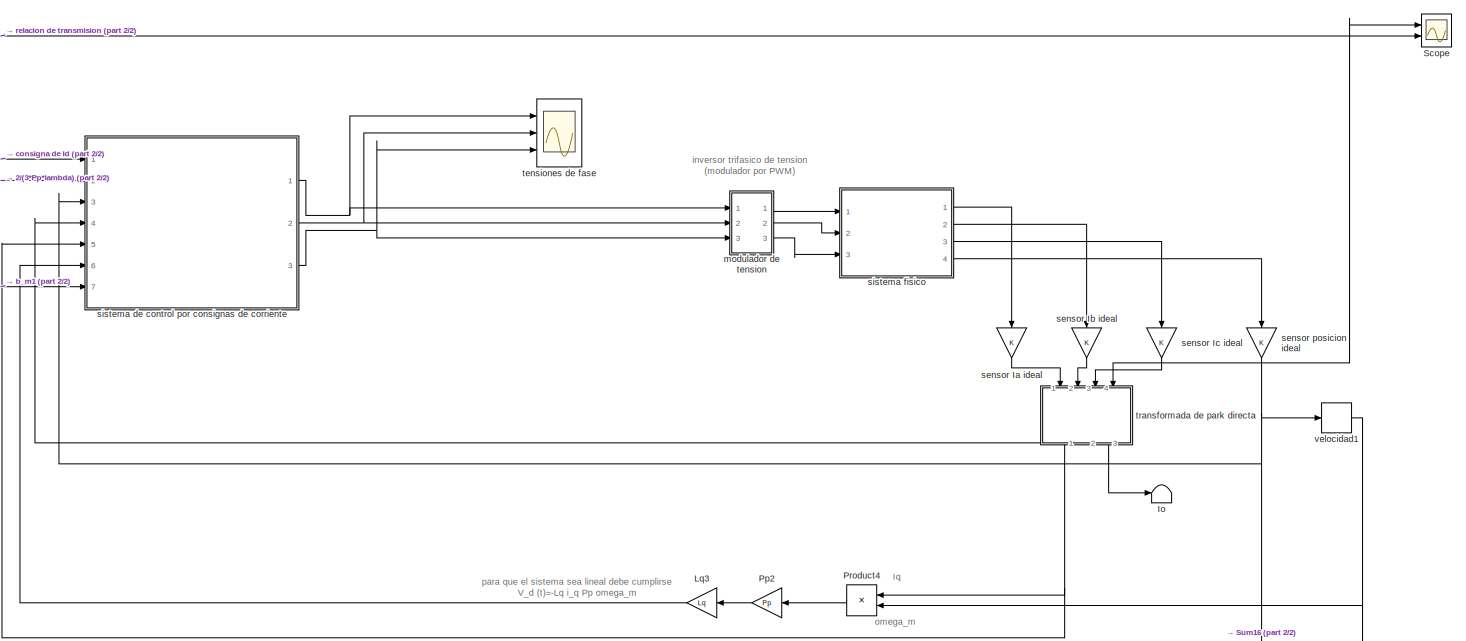
[diagram: root canvas - part 1/2, right side, full height]
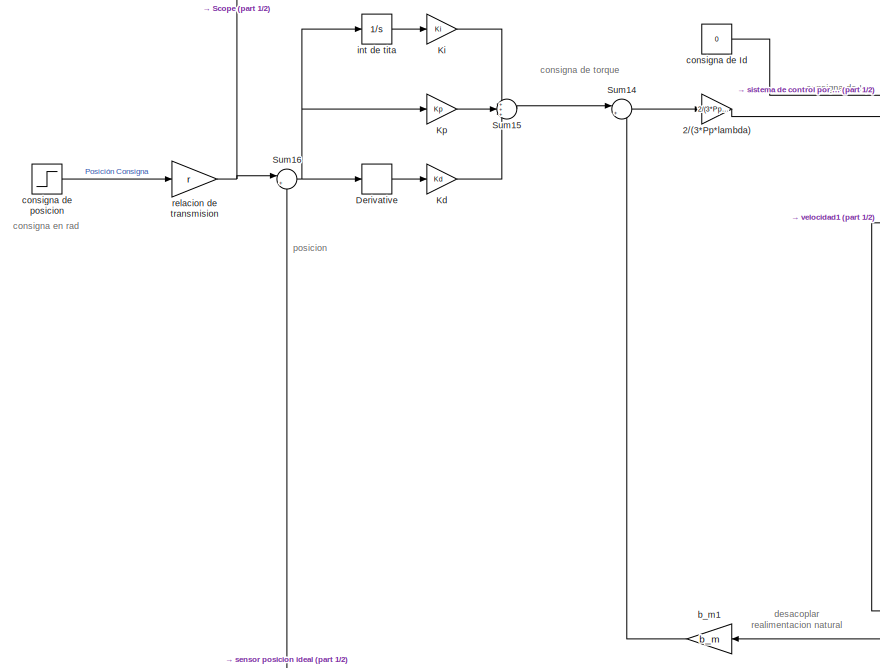
[diagram: root canvas - part 2/2, left side, full height]
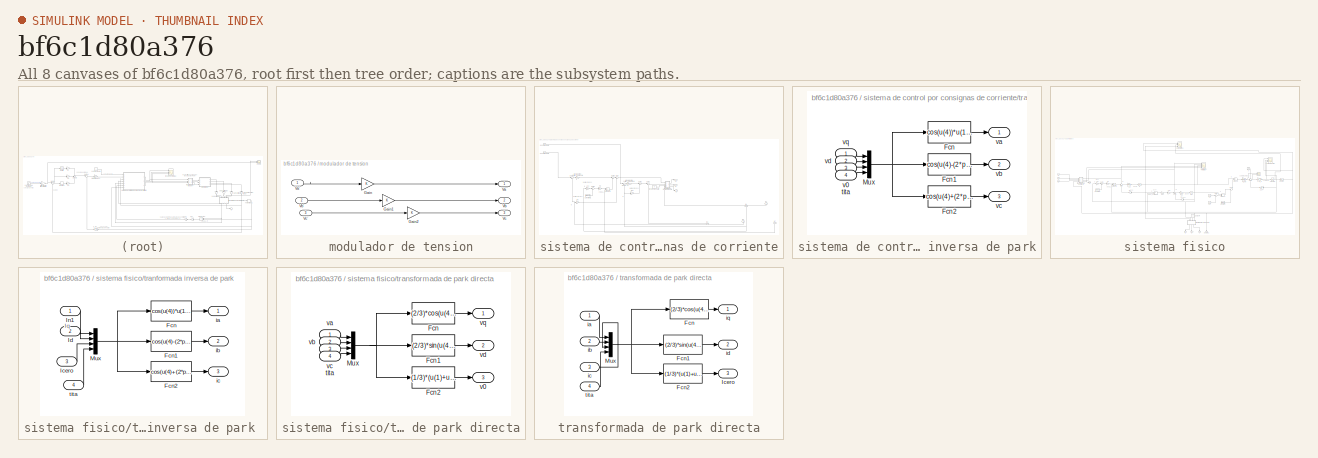
[diagram: thumbnail index - all 8 canvases of the model, root first then tree order]
MODEL slx_bf6c1d80a376
KIND model
BLOCK [Gain] 2//(3*Pp*lambda)
  Gain = 2/(3*Pp*lambda)
  OutDataTypeStr = Inherit: Inherit via internal rule
  ParamDataTypeStr = Inherit: Inherit via internal rule
  SaturateOnIntegerOverflow = off
BLOCK [Derivative] Derivative
BLOCK [Terminator] Io
BLOCK [Gain] Kd
  Gain = Kd
  OutDataTypeStr = Inherit: Inherit via internal rule
  ParamDataTypeStr = Inherit: Inherit via internal rule
  SaturateOnIntegerOverflow = off
BLOCK [Gain] Ki
  Gain = Ki
  OutDataTypeStr = Inherit: Inherit via internal rule
  ParamDataTypeStr = Inherit: Inherit via internal rule
  SaturateOnIntegerOverflow = off
BLOCK [Gain] Kp
  Gain = Kp
  OutDataTypeStr = Inherit: Inherit via internal rule
  ParamDataTypeStr = Inherit: Inherit via internal rule
  SaturateOnIntegerOverflow = off
BLOCK [Gain] Lq3
  Gain = Lq
  OutDataTypeStr = Inherit: Inherit via internal rule
  ParamDataTypeStr = Inherit: Inherit via internal rule
  SaturateOnIntegerOverflow = off
BLOCK [Gain] Pp2
  Gain = Pp
  OutDataTypeStr = Inherit: Inherit via internal rule
  ParamDataTypeStr = Inherit: Inherit via internal rule
  SaturateOnIntegerOverflow = off
BLOCK [Product] Product4
  InputSameDT = off
  OutDataTypeStr = Inherit: Inherit via internal rule
  Ports = [2, 1]
  SaturateOnIntegerOverflow = off
BLOCK [Scope] Scope
  DataFormat = StructureWithTime
  Floating = off
  LimitDataPoints = off
  NumInputPorts = 2
  Ports = [2]
  SampleTime = 0
  SaveName = ScopeData5
  ShowLegends = off
  YMax = 1.7e+07~942.902
  YMin = 4e+06~942.902
  ZoomMode = xonly
BLOCK [Sum] Sum14
  IconShape = round
  InputSameDT = off
  Inputs = |++
  OutDataTypeStr = Inherit: Inherit via internal rule
  Ports = [2, 1]
  SaturateOnIntegerOverflow = off
BLOCK [Sum] Sum15
  IconShape = round
  InputSameDT = off
  Inputs = +++
  OutDataTypeStr = Inherit: Inherit via internal rule
  Ports = [3, 1]
  SaturateOnIntegerOverflow = off
BLOCK [Sum] Sum16
  IconShape = round
  InputSameDT = off
  Inputs = |+-
  OutDataTypeStr = Inherit: Inherit via internal rule
  Ports = [2, 1]
  SaturateOnIntegerOverflow = off
BLOCK [Gain] b_m1
  Gain = b_m
  OutDataTypeStr = Inherit: Inherit via internal rule
  ParamDataTypeStr = Inherit: Inherit via internal rule
  SaturateOnIntegerOverflow = off
BLOCK [Constant] consigna de Id
  Value = 0
BLOCK [Step] consigna de posicion
  After = 2
  SampleTime = 0
  Time = 0.1
BLOCK [Integrator] int de tita
  Ports = [1, 1]
BLOCK [SubSystem] modulador de tension
  FunctionWithSeparateData = off
  MaskHideContents = off
  MinAlgLoopOccurrences = off
  Opaque = off
  Ports = [3, 3]
  PropExecContextOutsideSubsystem = off
  RTWSystemCode = Auto
  RequestExecContextInheritance = off
BLOCK [Gain] modulador de tension/Gain
  OutDataTypeStr = Inherit: Inherit via internal rule
  ParamDataTypeStr = Inherit: Inherit via internal rule
  SaturateOnIntegerOverflow = off
BLOCK [Gain] modulador de tension/Gain1
  OutDataTypeStr = Inherit: Inherit via internal rule
  ParamDataTypeStr = Inherit: Inherit via internal rule
  SaturateOnIntegerOverflow = off
BLOCK [Gain] modulador de tension/Gain2
  OutDataTypeStr = Inherit: Inherit via internal rule
  ParamDataTypeStr = Inherit: Inherit via internal rule
  SaturateOnIntegerOverflow = off
BLOCK [Outport] modulador de tension/Va
  IconDisplay = Port number
BLOCK [Inport] modulador de tension/Va'
  IconDisplay = Port number
BLOCK [Outport] modulador de tension/Vb
  IconDisplay = Port number
  Port = 2
BLOCK [Inport] modulador de tension/Vb'
  IconDisplay = Port number
  Port = 2
BLOCK [Outport] modulador de tension/Vc
  IconDisplay = Port number
  Port = 3
BLOCK [Inport] modulador de tension/Vc'
  IconDisplay = Port number
  Port = 3
BLOCK [Gain] relacion de transmision
  Gain = r
  OutDataTypeStr = Inherit: Inherit via internal rule
  ParamDataTypeStr = Inherit: Inherit via internal rule
  SaturateOnIntegerOverflow = off
BLOCK [Gain] sensor Ia ideal
  OutDataTypeStr = Inherit: Inherit via internal rule
  ParamDataTypeStr = Inherit: Inherit via internal rule
  SaturateOnIntegerOverflow = off
BLOCK [Gain] sensor Ib ideal
  OutDataTypeStr = Inherit: Inherit via internal rule
  ParamDataTypeStr = Inherit: Inherit via internal rule
  SaturateOnIntegerOverflow = off
BLOCK [Gain] sensor Ic ideal
  OutDataTypeStr = Inherit: Inherit via internal rule
  ParamDataTypeStr = Inherit: Inherit via internal rule
  SaturateOnIntegerOverflow = off
BLOCK [Gain] sensor posicion ideal
  OutDataTypeStr = Inherit: Inherit via internal rule
  ParamDataTypeStr = Inherit: Inherit via internal rule
  SaturateOnIntegerOverflow = off
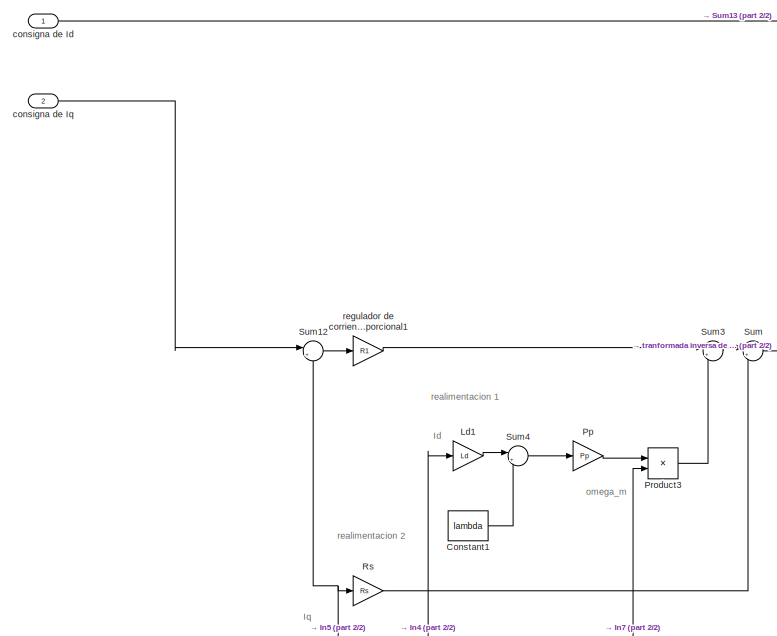
[diagram: sistema de control por consignas de corriente - part 1/2, middle left region]
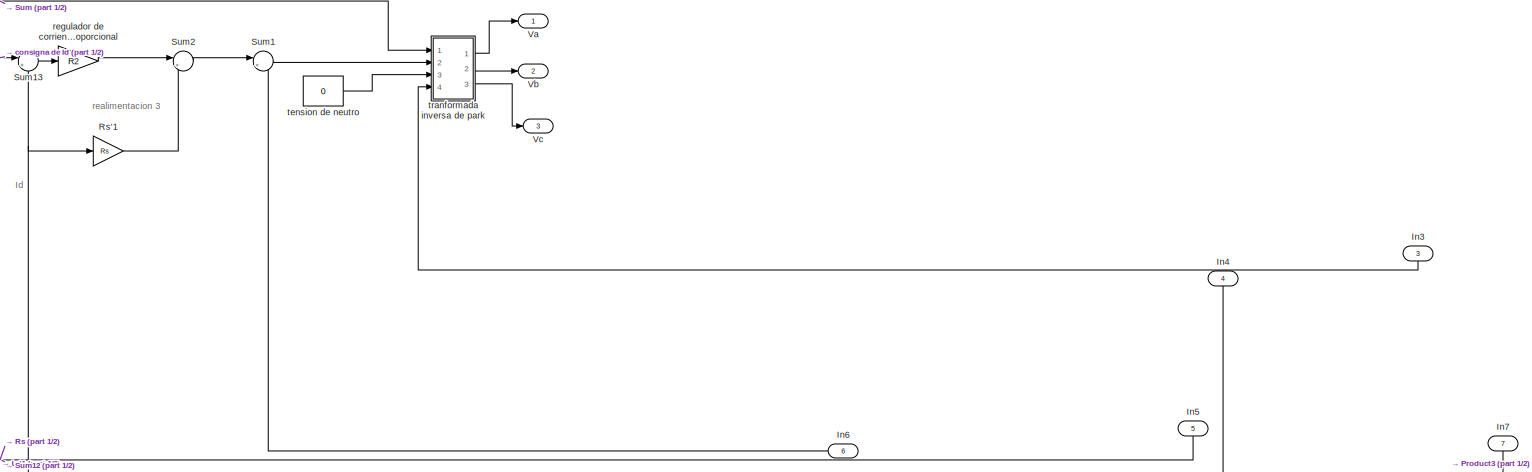
[diagram: sistema de control por consignas de corriente - part 2/2, middle right region]
BLOCK [SubSystem] sistema de control por consignas de corriente
  FunctionWithSeparateData = off
  MaskHideContents = off
  MinAlgLoopOccurrences = off
  Opaque = off
  Ports = [7, 3]
  PropExecContextOutsideSubsystem = off
  RTWSystemCode = Auto
  RequestExecContextInheritance = off
BLOCK [Constant] sistema de control por consignas de corriente/Constant1
  Value = lambda
BLOCK [Inport] sistema de control por consignas de corriente/In3
  IconDisplay = Port number
  Port = 3
BLOCK [Inport] sistema de control por consignas de corriente/In4
  IconDisplay = Port number
  Port = 4
BLOCK [Inport] sistema de control por consignas de corriente/In5
  IconDisplay = Port number
  Port = 5
BLOCK [Inport] sistema de control por consignas de corriente/In6
  IconDisplay = Port number
  Port = 6
BLOCK [Inport] sistema de control por consignas de corriente/In7
  IconDisplay = Port number
  Port = 7
BLOCK [Gain] sistema de control por consignas de corriente/Ld1
  Gain = Ld
  OutDataTypeStr = Inherit: Inherit via internal rule
  ParamDataTypeStr = Inherit: Inherit via internal rule
  SaturateOnIntegerOverflow = off
BLOCK [Gain] sistema de control por consignas de corriente/Pp
  Gain = Pp
  OutDataTypeStr = Inherit: Inherit via internal rule
  ParamDataTypeStr = Inherit: Inherit via internal rule
  SaturateOnIntegerOverflow = off
BLOCK [Product] sistema de control por consignas de corriente/Product3
  InputSameDT = off
  OutDataTypeStr = Inherit: Inherit via internal rule
  Ports = [2, 1]
  SaturateOnIntegerOverflow = off
BLOCK [Gain] sistema de control por consignas de corriente/Rs
  Gain = Rs
  OutDataTypeStr = Inherit: Inherit via internal rule
  ParamDataTypeStr = Inherit: Inherit via internal rule
  SaturateOnIntegerOverflow = off
BLOCK [Gain] sistema de control por consignas de corriente/Rs'1
  Gain = Rs
  OutDataTypeStr = Inherit: Inherit via internal rule
  ParamDataTypeStr = Inherit: Inherit via internal rule
  SaturateOnIntegerOverflow = off
BLOCK [Sum] sistema de control por consignas de corriente/Sum
  IconShape = round
  InputSameDT = off
  Inputs = |++
  OutDataTypeStr = Inherit: Inherit via internal rule
  Ports = [2, 1]
  SaturateOnIntegerOverflow = off
BLOCK [Sum] sistema de control por consignas de corriente/Sum1
  IconShape = round
  InputSameDT = off
  Inputs = |+-
  OutDataTypeStr = Inherit: Inherit via internal rule
  Ports = [2, 1]
  SaturateOnIntegerOverflow = off
BLOCK [Sum] sistema de control por consignas de corriente/Sum12
  IconShape = round
  InputSameDT = off
  Inputs = |+-
  OutDataTypeStr = Inherit: Inherit via internal rule
  Ports = [2, 1]
  SaturateOnIntegerOverflow = off
BLOCK [Sum] sistema de control por consignas de corriente/Sum13
  IconShape = round
  InputSameDT = off
  Inputs = |+-
  OutDataTypeStr = Inherit: Inherit via internal rule
  Ports = [2, 1]
  SaturateOnIntegerOverflow = off
BLOCK [Sum] sistema de control por consignas de corriente/Sum2
  IconShape = round
  InputSameDT = off
  Inputs = |++
  OutDataTypeStr = Inherit: Inherit via internal rule
  Ports = [2, 1]
  SaturateOnIntegerOverflow = off
BLOCK [Sum] sistema de control por consignas de corriente/Sum3
  IconShape = round
  InputSameDT = off
  Inputs = |++
  OutDataTypeStr = Inherit: Inherit via internal rule
  Ports = [2, 1]
  SaturateOnIntegerOverflow = off
BLOCK [Sum] sistema de control por consignas de corriente/Sum4
  IconShape = round
  InputSameDT = off
  Inputs = |++
  OutDataTypeStr = Inherit: Inherit via internal rule
  Ports = [2, 1]
  SaturateOnIntegerOverflow = off
BLOCK [Outport] sistema de control por consignas de corriente/Va
  IconDisplay = Port number
BLOCK [Outport] sistema de control por consignas de corriente/Vb
  IconDisplay = Port number
  Port = 2
BLOCK [Outport] sistema de control por consignas de corriente/Vc
  IconDisplay = Port number
  Port = 3
BLOCK [Inport] sistema de control por consignas de corriente/consigna de Id
  IconDisplay = Port number
BLOCK [Inport] sistema de control por consignas de corriente/consigna de Iq
  IconDisplay = Port number
  Port = 2
BLOCK [Gain] sistema de control por consignas de corriente/regulador de corriente ganacia proporcional
  Gain = R2
  OutDataTypeStr = Inherit: Inherit via internal rule
  ParamDataTypeStr = Inherit: Inherit via internal rule
  SaturateOnIntegerOverflow = off
BLOCK [Gain] sistema de control por consignas de corriente/regulador de corriente ganacia proporcional1
  Gain = R1
  OutDataTypeStr = Inherit: Inherit via internal rule
  ParamDataTypeStr = Inherit: Inherit via internal rule
  SaturateOnIntegerOverflow = off
BLOCK [Constant] sistema de control por consignas de corriente/tension de neutro
  Value = 0
BLOCK [SubSystem] sistema de control por consignas de corriente/tranformada inversa de park
  FunctionWithSeparateData = off
  MaskHideContents = off
  MinAlgLoopOccurrences = off
  Opaque = off
  Ports = [4, 3]
  PropExecContextOutsideSubsystem = off
  RTWSystemCode = Auto
  RequestExecContextInheritance = off
BLOCK [Fcn] sistema de control por consignas de corriente/tranformada inversa de park/Fcn
  Expr = cos(u(4))*u(1)+sin(u(4))*u(2)+u(3)
BLOCK [Fcn] sistema de control por consignas de corriente/tranformada inversa de park/Fcn1
  Expr = cos(u(4)-(2*pi/3))*u(1)+sin(u(4)-(2*pi/3))*u(2)+u(3)
BLOCK [Fcn] sistema de control por consignas de corriente/tranformada inversa de park/Fcn2
  Expr = cos(u(4)+(2*pi/3))*u(1)+sin(u(4)+(2*pi/3))*u(2)+u(3)
BLOCK [Mux] sistema de control por consignas de corriente/tranformada inversa de park/Mux
  DisplayOption = bar
  Ports = [4, 1]
BLOCK [Inport] sistema de control por consignas de corriente/tranformada inversa de park/tita
  IconDisplay = Port number
  Port = 4
BLOCK [Inport] sistema de control por consignas de corriente/tranformada inversa de park/v0
  IconDisplay = Port number
  Port = 3
BLOCK [Outport] sistema de control por consignas de corriente/tranformada inversa de park/va
  IconDisplay = Port number
BLOCK [Outport] sistema de control por consignas de corriente/tranformada inversa de park/vb
  IconDisplay = Port number
  Port = 2
BLOCK [Outport] sistema de control por consignas de corriente/tranformada inversa de park/vc
  IconDisplay = Port number
  Port = 3
BLOCK [Inport] sistema de control por consignas de corriente/tranformada inversa de park/vd
  IconDisplay = Port number
  Port = 2
BLOCK [Inport] sistema de control por consignas de corriente/tranformada inversa de park/vq
  IconDisplay = Port number
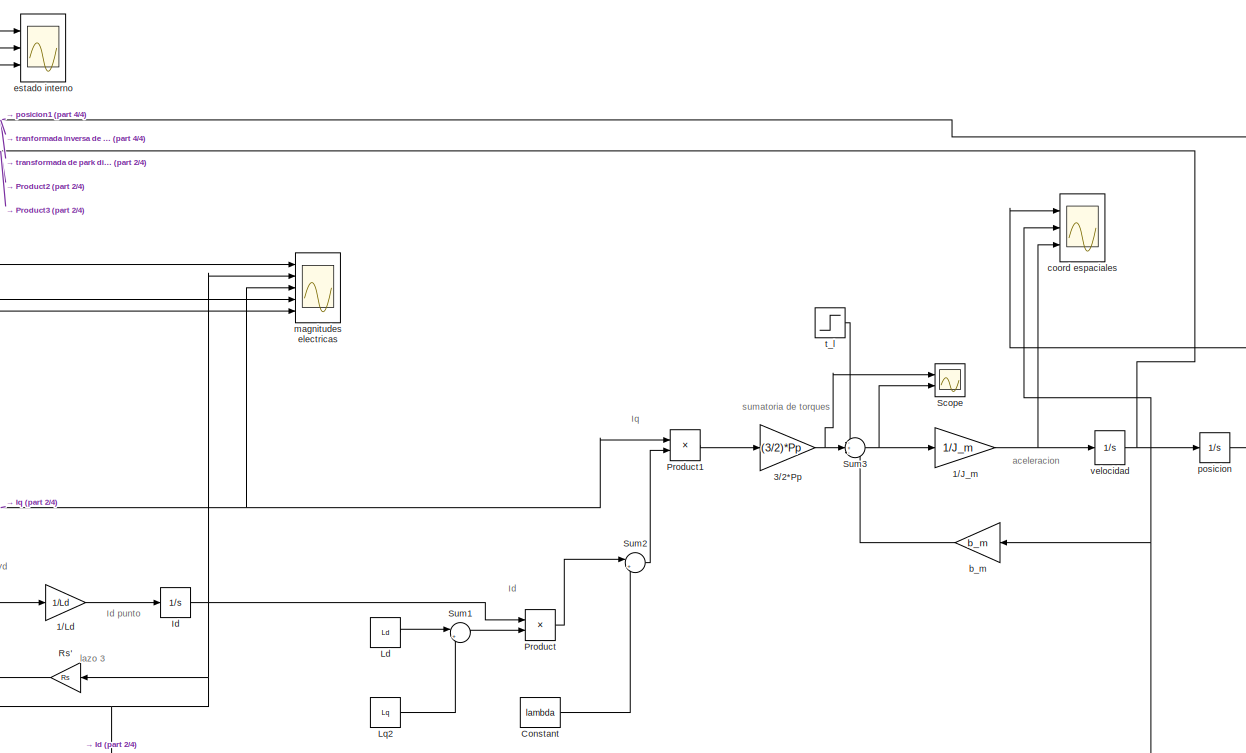
[diagram: sistema fisico - part 1/4, middle right region]
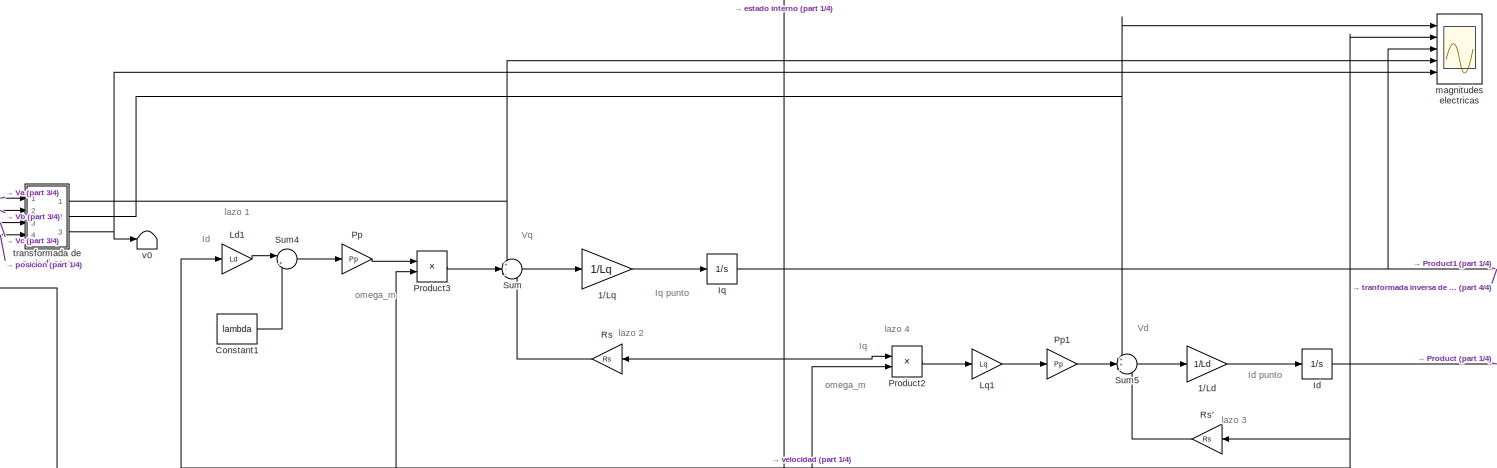
[diagram: sistema fisico - part 2/4, central region]
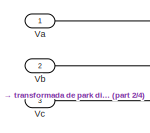
[diagram: sistema fisico - part 3/4, middle left region]
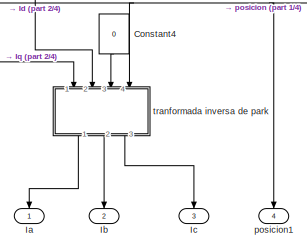
[diagram: sistema fisico - part 4/4, bottom center region]
BLOCK [SubSystem] sistema fisico
  FunctionWithSeparateData = off
  MaskHideContents = off
  MinAlgLoopOccurrences = off
  Opaque = off
  Ports = [3, 4]
  PropExecContextOutsideSubsystem = off
  RTWSystemCode = Auto
  RequestExecContextInheritance = off
BLOCK [Gain] sistema fisico/1//J_m
  Gain = 1/J_m
  OutDataTypeStr = Inherit: Inherit via internal rule
  ParamDataTypeStr = Inherit: Inherit via internal rule
  SaturateOnIntegerOverflow = off
BLOCK [Gain] sistema fisico/1//Ld
  Gain = 1/Ld
  OutDataTypeStr = Inherit: Inherit via internal rule
  ParamDataTypeStr = Inherit: Inherit via internal rule
  SaturateOnIntegerOverflow = off
BLOCK [Gain] sistema fisico/1//Lq
  Gain = 1/Lq
  OutDataTypeStr = Inherit: Inherit via internal rule
  ParamDataTypeStr = Inherit: Inherit via internal rule
  SaturateOnIntegerOverflow = off
BLOCK [Gain] sistema fisico/3//2*Pp
  Gain = (3/2)*Pp
  OutDataTypeStr = Inherit: Inherit via internal rule
  ParamDataTypeStr = Inherit: Inherit via internal rule
  SaturateOnIntegerOverflow = off
BLOCK [Constant] sistema fisico/Constant
  Value = lambda
BLOCK [Constant] sistema fisico/Constant1
  Value = lambda
BLOCK [Constant] sistema fisico/Constant4
  Value = 0
BLOCK [Outport] sistema fisico/Ia
  IconDisplay = Port number
BLOCK [Outport] sistema fisico/Ib
  IconDisplay = Port number
  Port = 2
BLOCK [Outport] sistema fisico/Ic
  IconDisplay = Port number
  Port = 3
BLOCK [Integrator] sistema fisico/Id
  Ports = [1, 1]
BLOCK [Integrator] sistema fisico/Iq
  Ports = [1, 1]
BLOCK [Constant] sistema fisico/Ld
  Value = Ld
BLOCK [Gain] sistema fisico/Ld1
  Gain = Ld
  OutDataTypeStr = Inherit: Inherit via internal rule
  ParamDataTypeStr = Inherit: Inherit via internal rule
  SaturateOnIntegerOverflow = off
BLOCK [Gain] sistema fisico/Lq1
  Gain = Lq
  OutDataTypeStr = Inherit: Inherit via internal rule
  ParamDataTypeStr = Inherit: Inherit via internal rule
  SaturateOnIntegerOverflow = off
BLOCK [Constant] sistema fisico/Lq2
  Value = Lq
BLOCK [Gain] sistema fisico/Pp
  Gain = Pp
  OutDataTypeStr = Inherit: Inherit via internal rule
  ParamDataTypeStr = Inherit: Inherit via internal rule
  SaturateOnIntegerOverflow = off
BLOCK [Gain] sistema fisico/Pp1
  Gain = Pp
  OutDataTypeStr = Inherit: Inherit via internal rule
  ParamDataTypeStr = Inherit: Inherit via internal rule
  SaturateOnIntegerOverflow = off
BLOCK [Product] sistema fisico/Product
  InputSameDT = off
  OutDataTypeStr = Inherit: Inherit via internal rule
  Ports = [2, 1]
  SaturateOnIntegerOverflow = off
BLOCK [Product] sistema fisico/Product1
  InputSameDT = off
  OutDataTypeStr = Inherit: Inherit via internal rule
  Ports = [2, 1]
  SaturateOnIntegerOverflow = off
BLOCK [Product] sistema fisico/Product2
  InputSameDT = off
  OutDataTypeStr = Inherit: Inherit via internal rule
  Ports = [2, 1]
  SaturateOnIntegerOverflow = off
BLOCK [Product] sistema fisico/Product3
  InputSameDT = off
  OutDataTypeStr = Inherit: Inherit via internal rule
  Ports = [2, 1]
  SaturateOnIntegerOverflow = off
BLOCK [Gain] sistema fisico/Rs
  Gain = Rs
  OutDataTypeStr = Inherit: Inherit via internal rule
  ParamDataTypeStr = Inherit: Inherit via internal rule
  SaturateOnIntegerOverflow = off
BLOCK [Gain] sistema fisico/Rs'
  Gain = Rs
  OutDataTypeStr = Inherit: Inherit via internal rule
  ParamDataTypeStr = Inherit: Inherit via internal rule
  SaturateOnIntegerOverflow = off
BLOCK [Scope] sistema fisico/Scope
  DataFormat = StructureWithTime
  Floating = off
  LimitDataPoints = off
  NumInputPorts = 2
  Ports = [2]
  SampleTime = 0
  SaveName = ScopeData4
  ShowLegends = off
  YMax = 5~5
  YMin = -5~-5
  ZoomMode = xonly
BLOCK [Sum] sistema fisico/Sum
  IconShape = round
  InputSameDT = off
  Inputs = +--
  OutDataTypeStr = Inherit: Inherit via internal rule
  Ports = [3, 1]
  SaturateOnIntegerOverflow = off
BLOCK [Sum] sistema fisico/Sum1
  IconShape = round
  InputSameDT = off
  Inputs = |+-
  OutDataTypeStr = Inherit: Inherit via internal rule
  Ports = [2, 1]
  SaturateOnIntegerOverflow = off
BLOCK [Sum] sistema fisico/Sum2
  IconShape = round
  InputSameDT = off
  Inputs = |++
  OutDataTypeStr = Inherit: Inherit via internal rule
  Ports = [2, 1]
  SaturateOnIntegerOverflow = off
BLOCK [Sum] sistema fisico/Sum3
  IconShape = round
  InputSameDT = off
  Inputs = -+-
  OutDataTypeStr = Inherit: Inherit via internal rule
  Ports = [3, 1]
  SaturateOnIntegerOverflow = off
BLOCK [Sum] sistema fisico/Sum4
  IconShape = round
  InputSameDT = off
  Inputs = |++
  OutDataTypeStr = Inherit: Inherit via internal rule
  Ports = [2, 1]
  SaturateOnIntegerOverflow = off
BLOCK [Sum] sistema fisico/Sum5
  IconShape = round
  InputSameDT = off
  Inputs = ++-
  OutDataTypeStr = Inherit: Inherit via internal rule
  Ports = [3, 1]
  SaturateOnIntegerOverflow = off
BLOCK [Inport] sistema fisico/Va
  IconDisplay = Port number
BLOCK [Inport] sistema fisico/Vb
  IconDisplay = Port number
  Port = 2
BLOCK [Inport] sistema fisico/Vc
  IconDisplay = Port number
  Port = 3
BLOCK [Gain] sistema fisico/b_m
  Gain = b_m
  OutDataTypeStr = Inherit: Inherit via internal rule
  ParamDataTypeStr = Inherit: Inherit via internal rule
  SaturateOnIntegerOverflow = off
BLOCK [Scope] sistema fisico/coord espaciales
  DataFormat = StructureWithTime
  Floating = off
  LimitDataPoints = off
  MaxDataPoints = 8000
  NumInputPorts = 3
  Ports = [3]
  SampleTime = 0
  SaveName = ScopeData1
  ShowLegends = off
  TimeRange = 12
  YMax = 3000~300~100000
  YMin = -1000~0~-50000
  ZoomMode = xonly
BLOCK [Scope] sistema fisico/estado interno
  DataFormat = StructureWithTime
  Floating = off
  LimitDataPoints = off
  MaxDataPoints = 8000
  NumInputPorts = 3
  Ports = [3]
  SampleTime = 0
  ShowLegends = off
  TimeRange = 10
  YMax = 6000~600~10
  YMin = -2000~0~-5
  ZoomMode = xonly
BLOCK [Scope] sistema fisico/magnitudes electricas
  DataFormat = StructureWithTime
  Floating = off
  LimitDataPoints = off
  MaxDataPoints = 8000
  NumInputPorts = 5
  Ports = [5]
  SampleTime = 0
  SaveName = ScopeData2
  ShowLegends = off
  TimeRange = 5
  YMax = 2.5e+17~-2.25e+08~-500000~-1.3e+19~1.5e+10
  YMin = 0~-2.5e+08~-4e+06~-1.65e+19~-1.5e+10
  ZoomMode = xonly
BLOCK [Integrator] sistema fisico/posicion
  Ports = [1, 1]
BLOCK [Outport] sistema fisico/posicion1
  IconDisplay = Port number
  Port = 4
BLOCK [Step] sistema fisico/t_l
  After = T_l
  SampleTime = 0
  Time = 0.3
BLOCK [SubSystem] sistema fisico/tranformada inversa de park 
  FunctionWithSeparateData = off
  MaskHideContents = off
  MinAlgLoopOccurrences = off
  Opaque = off
  Ports = [4, 3]
  PropExecContextOutsideSubsystem = off
  RTWSystemCode = Auto
  RequestExecContextInheritance = off
BLOCK [Fcn] sistema fisico/tranformada inversa de park /Fcn
  Expr = cos(u(4))*u(1)+sin(u(4))*u(2)+u(3)
BLOCK [Fcn] sistema fisico/tranformada inversa de park /Fcn1
  Expr = cos(u(4)-(2*pi/3))*u(1)+sin(u(4)-(2*pi/3))*u(2)+u(3)
BLOCK [Fcn] sistema fisico/tranformada inversa de park /Fcn2
  Expr = cos(u(4)+(2*pi/3))*u(1)+sin(u(4)+(2*pi/3))*u(2)+u(3)
BLOCK [Inport] sistema fisico/tranformada inversa de park /Icero
  IconDisplay = Port number
  Port = 3
BLOCK [Inport] sistema fisico/tranformada inversa de park /Id
  IconDisplay = Port number
  Port = 2
BLOCK [Inport] sistema fisico/tranformada inversa de park /In1
  IconDisplay = Port number
BLOCK [Mux] sistema fisico/tranformada inversa de park /Mux
  DisplayOption = bar
  Ports = [4, 1]
BLOCK [Outport] sistema fisico/tranformada inversa de park /ia
  IconDisplay = Port number
BLOCK [Outport] sistema fisico/tranformada inversa de park /ib
  IconDisplay = Port number
  Port = 2
BLOCK [Outport] sistema fisico/tranformada inversa de park /ic
  IconDisplay = Port number
  Port = 3
BLOCK [Inport] sistema fisico/tranformada inversa de park /tita
  IconDisplay = Port number
  Port = 4
BLOCK [SubSystem] sistema fisico/transformada de park directa
  FunctionWithSeparateData = off
  MaskHideContents = off
  MinAlgLoopOccurrences = off
  Opaque = off
  Ports = [4, 3]
  PropExecContextOutsideSubsystem = off
  RTWSystemCode = Auto
  RequestExecContextInheritance = off
BLOCK [Fcn] sistema fisico/transformada de park directa/Fcn
  Expr = (2/3)*cos(u(4))*u(1)+(2/3)*cos(u(4)-(2*pi/3))*u(2)+(2/3)*cos(u(4)+(2*pi/3))*u(3)
BLOCK [Fcn] sistema fisico/transformada de park directa/Fcn1
  Expr = (2/3)*sin(u(4))*u(1)+(2/3)*sin(u(4)-(2*pi/3))*u(2)+(2/3)*sin(u(4)+(2*pi/3))*u(3)
BLOCK [Fcn] sistema fisico/transformada de park directa/Fcn2
  Expr = (1/3)*(u(1)+u(2)+u(3))
BLOCK [Mux] sistema fisico/transformada de park directa/Mux
  DisplayOption = bar
  Ports = [4, 1]
BLOCK [Inport] sistema fisico/transformada de park directa/tita
  IconDisplay = Port number
  Port = 4
BLOCK [Outport] sistema fisico/transformada de park directa/v0
  IconDisplay = Port number
  Port = 3
BLOCK [Inport] sistema fisico/transformada de park directa/va
  IconDisplay = Port number
BLOCK [Inport] sistema fisico/transformada de park directa/vb
  IconDisplay = Port number
  Port = 2
BLOCK [Inport] sistema fisico/transformada de park directa/vc
  IconDisplay = Port number
  Port = 3
BLOCK [Outport] sistema fisico/transformada de park directa/vd
  IconDisplay = Port number
  Port = 2
BLOCK [Outport] sistema fisico/transformada de park directa/vq
  IconDisplay = Port number
BLOCK [Terminator] sistema fisico/v0
BLOCK [Integrator] sistema fisico/velocidad
  ContinuousStateAttributes = 'velocidad'
  Ports = [1, 1]
BLOCK [Scope] tensiones de fase
  DataFormat = StructureWithTime
  Floating = off
  LimitDataPoints = off
  MaxDataPoints = 8000
  NumInputPorts = 3
  Ports = [3]
  SampleTime = 0
  SaveName = ScopeData3
  ShowLegends = off
  TimeRange = 8
  YMax = 50~400~50
  YMin = -50~0~-50
  ZoomMode = yonly
BLOCK [SubSystem] transformada de park directa
  FunctionWithSeparateData = off
  MaskHideContents = off
  MinAlgLoopOccurrences = off
  Opaque = off
  Ports = [4, 3]
  PropExecContextOutsideSubsystem = off
  RTWSystemCode = Auto
  RequestExecContextInheritance = off
BLOCK [Fcn] transformada de park directa/Fcn
  Expr = (2/3)*cos(u(4))*u(1)+(2/3)*cos(u(4)-(2*pi/3))*u(2)+(2/3)*cos(u(4)+(2*pi/3))*u(3)
BLOCK [Fcn] transformada de park directa/Fcn1
  Expr = (2/3)*sin(u(4))*u(1)+(2/3)*sin(u(4)-(2*pi/3))*u(2)+(2/3)*sin(u(4)+(2*pi/3))*u(3)
BLOCK [Fcn] transformada de park directa/Fcn2
  Expr = (1/3)*(u(1)+u(2)+u(3))
BLOCK [Outport] transformada de park directa/Icero
  IconDisplay = Port number
  Port = 3
BLOCK [Mux] transformada de park directa/Mux
  DisplayOption = bar
  Ports = [4, 1]
BLOCK [Inport] transformada de park directa/ia
  IconDisplay = Port number
BLOCK [Inport] transformada de park directa/ib
  IconDisplay = Port number
  Port = 2
BLOCK [Inport] transformada de park directa/ic
  IconDisplay = Port number
  Port = 3
BLOCK [Outport] transformada de park directa/id
  IconDisplay = Port number
  Port = 2
BLOCK [Outport] transformada de park directa/iq
  IconDisplay = Port number
BLOCK [Inport] transformada de park directa/tita
  IconDisplay = Port number
  Port = 4
BLOCK [Derivative] velocidad1
ANNOTATION (root): Iq
ANNOTATION (root): consigna de Iq
ANNOTATION (root): consigna de torque
ANNOTATION (root): consigna en rad
ANNOTATION (root): desacoplar realimentacion natural
ANNOTATION (root): inversor trifasico de tension (modulador por PWM)
ANNOTATION (root): omega_m
ANNOTATION (root): para que el sistema sea lineal debe cumplirse V_d (t)=-Lq i_q Pp omega_m
ANNOTATION (root): posicion
ANNOTATION sistema de control por consignas de corriente: Id
ANNOTATION sistema de control por consignas de corriente: Iq
ANNOTATION sistema de control por consignas de corriente: omega_m
ANNOTATION sistema de control por consignas de corriente: realimentacion 1
ANNOTATION sistema de control por consignas de corriente: realimentacion 2
ANNOTATION sistema de control por consignas de corriente: realimentacion 3
ANNOTATION sistema fisico: Id
ANNOTATION sistema fisico: Id punto
ANNOTATION sistema fisico: Iq
ANNOTATION sistema fisico: Iq punto
ANNOTATION sistema fisico: Vd
ANNOTATION sistema fisico: Vq
ANNOTATION sistema fisico: aceleracion
ANNOTATION sistema fisico: lazo 1
ANNOTATION sistema fisico: lazo 2
ANNOTATION sistema fisico: lazo 3
ANNOTATION sistema fisico: lazo 4
ANNOTATION sistema fisico: omega_m
ANNOTATION sistema fisico: sumatoria de torques
ANNOTATION sistema fisico/tranformada inversa de park : Iq
LINE 2//(3*Pp*lambda):1 -> sistema de control por consignas de corriente:2
LINE Derivative:1 -> Kd:1
LINE Kd:1 -> Sum15:3
LINE Ki:1 -> Sum15:1
LINE Kp:1 -> Sum15:2
LINE Lq3:1 -> sistema de control por consignas de corriente:6
LINE Pp2:1 -> Lq3:1
LINE Product4:1 -> Pp2:1
LINE Sum14:1 -> 2//(3*Pp*lambda):1
LINE Sum15:1 -> Sum14:1
NET Sum16:1 -> Derivative:1, Kp:1, int de tita:1
LINE b_m1:1 -> Sum14:2
LINE consigna de Id:1 -> sistema de control por consignas de corriente:1
LINE consigna de posicion:1 -> relacion de transmision:1
LINE int de tita:1 -> Ki:1
LINE modulador de tension/Gain1:1 -> modulador de tension/Vb:1
LINE modulador de tension/Gain2:1 -> modulador de tension/Vc:1
LINE modulador de tension/Gain:1 -> modulador de tension/Va:1
LINE modulador de tension/Va':1 -> modulador de tension/Gain:1
LINE modulador de tension/Vb':1 -> modulador de tension/Gain1:1
LINE modulador de tension/Vc':1 -> modulador de tension/Gain2:1
LINE modulador de tension:1 -> sistema fisico:1
LINE modulador de tension:2 -> sistema fisico:2
LINE modulador de tension:3 -> sistema fisico:3
NET relacion de transmision:1 -> Scope:2, Sum16:1
LINE sensor Ia ideal:1 -> transformada de park directa:1
LINE sensor Ib ideal:1 -> transformada de park directa:2
LINE sensor Ic ideal:1 -> transformada de park directa:3
NET sensor posicion ideal:1 -> Scope:1, Sum16:2, sistema de control por consignas de corriente:3, transformada de park directa:4, velocidad1:1
LINE sistema de control por consignas de corriente/Constant1:1 -> sistema de control por consignas de corriente/Sum4:2
LINE sistema de control por consignas de corriente/In3:1 -> sistema de control por consignas de corriente/tranformada inversa de park:4
NET sistema de control por consignas de corriente/In4:1 -> sistema de control por consignas de corriente/Ld1:1, sistema de control por consignas de corriente/Rs'1:1, sistema de control por consignas de corriente/Sum13:2
NET sistema de control por consignas de corriente/In5:1 -> sistema de control por consignas de corriente/Rs:1, sistema de control por consignas de corriente/Sum12:2
LINE sistema de control por consignas de corriente/In6:1 -> sistema de control por consignas de corriente/Sum1:2
LINE sistema de control por consignas de corriente/In7:1 -> sistema de control por consignas de corriente/Product3:2
LINE sistema de control por consignas de corriente/Ld1:1 -> sistema de control por consignas de corriente/Sum4:1
LINE sistema de control por consignas de corriente/Pp:1 -> sistema de control por consignas de corriente/Product3:1
LINE sistema de control por consignas de corriente/Product3:1 -> sistema de control por consignas de corriente/Sum3:2
LINE sistema de control por consignas de corriente/Rs'1:1 -> sistema de control por consignas de corriente/Sum2:2
LINE sistema de control por consignas de corriente/Rs:1 -> sistema de control por consignas de corriente/Sum:2
LINE sistema de control por consignas de corriente/Sum12:1 -> sistema de control por consignas de corriente/regulador de corriente ganacia proporcional1:1
LINE sistema de control por consignas de corriente/Sum13:1 -> sistema de control por consignas de corriente/regulador de corriente ganacia proporcional:1
LINE sistema de control por consignas de corriente/Sum1:1 -> sistema de control por consignas de corriente/tranformada inversa de park:2
LINE sistema de control por consignas de corriente/Sum2:1 -> sistema de control por consignas de corriente/Sum1:1
LINE sistema de control por consignas de corriente/Sum3:1 -> sistema de control por consignas de corriente/Sum:1
LINE sistema de control por consignas de corriente/Sum4:1 -> sistema de control por consignas de corriente/Pp:1
LINE sistema de control por consignas de corriente/Sum:1 -> sistema de control por consignas de corriente/tranformada inversa de park:1
LINE sistema de control por consignas de corriente/consigna de Id:1 -> sistema de control por consignas de corriente/Sum13:1
LINE sistema de control por consignas de corriente/consigna de Iq:1 -> sistema de control por consignas de corriente/Sum12:1
LINE sistema de control por consignas de corriente/regulador de corriente ganacia proporcional1:1 -> sistema de control por consignas de corriente/Sum3:1
LINE sistema de control por consignas de corriente/regulador de corriente ganacia proporcional:1 -> sistema de control por consignas de corriente/Sum2:1
LINE sistema de control por consignas de corriente/tension de neutro:1 -> sistema de control por consignas de corriente/tranformada inversa de park:3
LINE sistema de control por consignas de corriente/tranformada inversa de park/Fcn1:1 -> sistema de control por consignas de corriente/tranformada inversa de park/vb:1
LINE sistema de control por consignas de corriente/tranformada inversa de park/Fcn2:1 -> sistema de control por consignas de corriente/tranformada inversa de park/vc:1
LINE sistema de control por consignas de corriente/tranformada inversa de park/Fcn:1 -> sistema de control por consignas de corriente/tranformada inversa de park/va:1
NET sistema de control por consignas de corriente/tranformada inversa de park/Mux:1 -> sistema de control por consignas de corriente/tranformada inversa de park/Fcn1:1, sistema de control por consignas de corriente/tranformada inversa de park/Fcn2:1, sistema de control por consignas de corriente/tranformada inversa de park/Fcn:1
LINE sistema de control por consignas de corriente/tranformada inversa de park/tita:1 -> sistema de control por consignas de corriente/tranformada inversa de park/Mux:4
LINE sistema de control por consignas de corriente/tranformada inversa de park/v0:1 -> sistema de control por consignas de corriente/tranformada inversa de park/Mux:3
LINE sistema de control por consignas de corriente/tranformada inversa de park/vd:1 -> sistema de control por consignas de corriente/tranformada inversa de park/Mux:2
LINE sistema de control por consignas de corriente/tranformada inversa de park/vq:1 -> sistema de control por consignas de corriente/tranformada inversa de park/Mux:1
LINE sistema de control por consignas de corriente/tranformada inversa de park:1 -> sistema de control por consignas de corriente/Va:1
LINE sistema de control por consignas de corriente/tranformada inversa de park:2 -> sistema de control por consignas de corriente/Vb:1
LINE sistema de control por consignas de corriente/tranformada inversa de park:3 -> sistema de control por consignas de corriente/Vc:1
NET sistema de control por consignas de corriente:1 -> modulador de tension:1, tensiones de fase:1
NET sistema de control por consignas de corriente:2 -> modulador de tension:2, tensiones de fase:2
NET sistema de control por consignas de corriente:3 -> modulador de tension:3, tensiones de fase:3
NET sistema fisico/1//J_m:1 -> sistema fisico/coord espaciales:3, sistema fisico/velocidad:1
LINE sistema fisico/1//Ld:1 -> sistema fisico/Id:1
LINE sistema fisico/1//Lq:1 -> sistema fisico/Iq:1
NET sistema fisico/3//2*Pp:1 -> sistema fisico/Scope:1, sistema fisico/Sum3:2
LINE sistema fisico/Constant1:1 -> sistema fisico/Sum4:2
LINE sistema fisico/Constant4:1 -> sistema fisico/tranformada inversa de park :3
LINE sistema fisico/Constant:1 -> sistema fisico/Sum2:2
NET sistema fisico/Id:1 -> sistema fisico/Ld1:1, sistema fisico/Product:1, sistema fisico/Rs':1, sistema fisico/magnitudes electricas:2, sistema fisico/tranformada inversa de park :2
NET sistema fisico/Iq:1 -> sistema fisico/Product1:1, sistema fisico/Product2:1, sistema fisico/Rs:1, sistema fisico/estado interno:3, sistema fisico/magnitudes electricas:3, sistema fisico/tranformada inversa de park :1
LINE sistema fisico/Ld1:1 -> sistema fisico/Sum4:1
LINE sistema fisico/Ld:1 -> sistema fisico/Sum1:1
LINE sistema fisico/Lq1:1 -> sistema fisico/Pp1:1
LINE sistema fisico/Lq2:1 -> sistema fisico/Sum1:2
LINE sistema fisico/Pp1:1 -> sistema fisico/Sum5:2
LINE sistema fisico/Pp:1 -> sistema fisico/Product3:1
LINE sistema fisico/Product1:1 -> sistema fisico/3//2*Pp:1
LINE sistema fisico/Product2:1 -> sistema fisico/Lq1:1
LINE sistema fisico/Product3:1 -> sistema fisico/Sum:2
LINE sistema fisico/Product:1 -> sistema fisico/Sum2:1
LINE sistema fisico/Rs':1 -> sistema fisico/Sum5:3
LINE sistema fisico/Rs:1 -> sistema fisico/Sum:3
LINE sistema fisico/Sum1:1 -> sistema fisico/Product:2
LINE sistema fisico/Sum2:1 -> sistema fisico/Product1:2
NET sistema fisico/Sum3:1 -> sistema fisico/1//J_m:1, sistema fisico/Scope:2
LINE sistema fisico/Sum4:1 -> sistema fisico/Pp:1
LINE sistema fisico/Sum5:1 -> sistema fisico/1//Ld:1
LINE sistema fisico/Sum:1 -> sistema fisico/1//Lq:1
LINE sistema fisico/Va:1 -> sistema fisico/transformada de park directa:1
LINE sistema fisico/Vb:1 -> sistema fisico/transformada de park directa:2
LINE sistema fisico/Vc:1 -> sistema fisico/transformada de park directa:3
LINE sistema fisico/b_m:1 -> sistema fisico/Sum3:3
NET sistema fisico/posicion:1 -> sistema fisico/coord espaciales:1, sistema fisico/estado interno:1, sistema fisico/posicion1:1, sistema fisico/tranformada inversa de park :4, sistema fisico/transformada de park directa:4
LINE sistema fisico/t_l:1 -> sistema fisico/Sum3:1
LINE sistema fisico/tranformada inversa de park /Fcn1:1 -> sistema fisico/tranformada inversa de park /ib:1
LINE sistema fisico/tranformada inversa de park /Fcn2:1 -> sistema fisico/tranformada inversa de park /ic:1
LINE sistema fisico/tranformada inversa de park /Fcn:1 -> sistema fisico/tranformada inversa de park /ia:1
LINE sistema fisico/tranformada inversa de park /Icero:1 -> sistema fisico/tranformada inversa de park /Mux:3
LINE sistema fisico/tranformada inversa de park /Id:1 -> sistema fisico/tranformada inversa de park /Mux:2
LINE sistema fisico/tranformada inversa de park /In1:1 -> sistema fisico/tranformada inversa de park /Mux:1
NET sistema fisico/tranformada inversa de park /Mux:1 -> sistema fisico/tranformada inversa de park /Fcn1:1, sistema fisico/tranformada inversa de park /Fcn2:1, sistema fisico/tranformada inversa de park /Fcn:1
LINE sistema fisico/tranformada inversa de park /tita:1 -> sistema fisico/tranformada inversa de park /Mux:4
LINE sistema fisico/tranformada inversa de park :1 -> sistema fisico/Ia:1
LINE sistema fisico/tranformada inversa de park :2 -> sistema fisico/Ib:1
LINE sistema fisico/tranformada inversa de park :3 -> sistema fisico/Ic:1
LINE sistema fisico/transformada de park directa/Fcn1:1 -> sistema fisico/transformada de park directa/vd:1
LINE sistema fisico/transformada de park directa/Fcn2:1 -> sistema fisico/transformada de park directa/v0:1
LINE sistema fisico/transformada de park directa/Fcn:1 -> sistema fisico/transformada de park directa/vq:1
NET sistema fisico/transformada de park directa/Mux:1 -> sistema fisico/transformada de park directa/Fcn1:1, sistema fisico/transformada de park directa/Fcn2:1, sistema fisico/transformada de park directa/Fcn:1
LINE sistema fisico/transformada de park directa/tita:1 -> sistema fisico/transformada de park directa/Mux:4
LINE sistema fisico/transformada de park directa/va:1 -> sistema fisico/transformada de park directa/Mux:1
LINE sistema fisico/transformada de park directa/vb:1 -> sistema fisico/transformada de park directa/Mux:2
LINE sistema fisico/transformada de park directa/vc:1 -> sistema fisico/transformada de park directa/Mux:3
NET sistema fisico/transformada de park directa:1 -> sistema fisico/Sum:1, sistema fisico/magnitudes electricas:4
NET sistema fisico/transformada de park directa:2 -> sistema fisico/Sum5:1, sistema fisico/magnitudes electricas:1
NET sistema fisico/transformada de park directa:3 -> sistema fisico/magnitudes electricas:5, sistema fisico/v0:1
NET sistema fisico/velocidad:1 -> sistema fisico/Product2:2, sistema fisico/Product3:2, sistema fisico/b_m:1, sistema fisico/coord espaciales:2, sistema fisico/estado interno:2, sistema fisico/posicion:1
LINE sistema fisico:1 -> sensor Ia ideal:1
LINE sistema fisico:2 -> sensor Ib ideal:1
LINE sistema fisico:3 -> sensor Ic ideal:1
LINE sistema fisico:4 -> sensor posicion ideal:1
LINE transformada de park directa/Fcn1:1 -> transformada de park directa/id:1
LINE transformada de park directa/Fcn2:1 -> transformada de park directa/Icero:1
LINE transformada de park directa/Fcn:1 -> transformada de park directa/iq:1
NET transformada de park directa/Mux:1 -> transformada de park directa/Fcn1:1, transformada de park directa/Fcn2:1, transformada de park directa/Fcn:1
LINE transformada de park directa/ia:1 -> transformada de park directa/Mux:1
LINE transformada de park directa/ib:1 -> transformada de park directa/Mux:2
LINE transformada de park directa/ic:1 -> transformada de park directa/Mux:3
LINE transformada de park directa/tita:1 -> transformada de park directa/Mux:4
NET transformada de park directa:1 -> Product4:1, sistema de control por consignas de corriente:5
LINE transformada de park directa:2 -> sistema de control por consignas de corriente:4
LINE transformada de park directa:3 -> Io:1
NET velocidad1:1 -> Product4:2, b_m1:1, sistema de control por consignas de corriente:7
note: NET lines group one-source signal fan-out (src -> all destinations, sorted); 1:1 wires keep LINE
